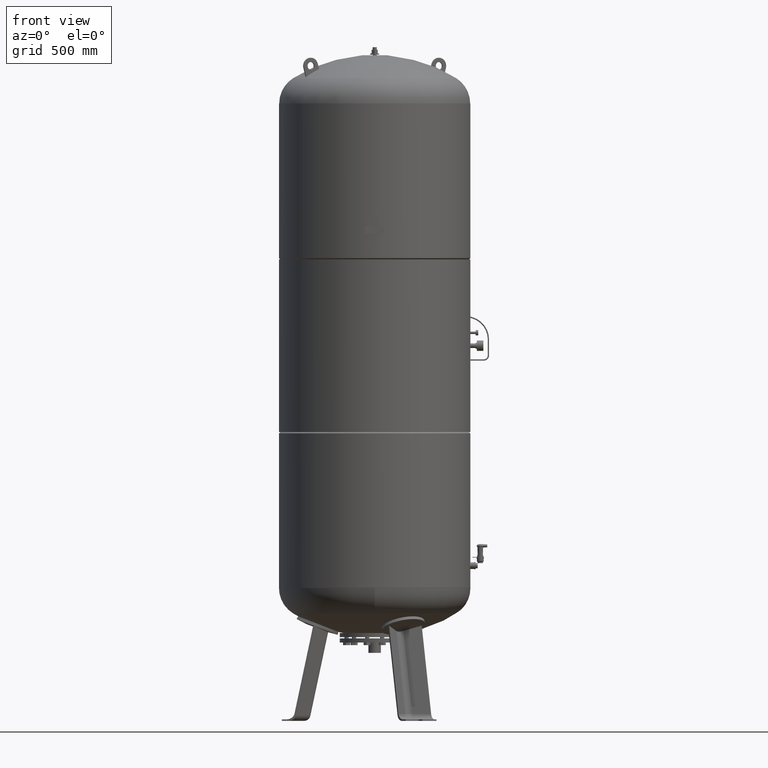
[diagram: clean part render]
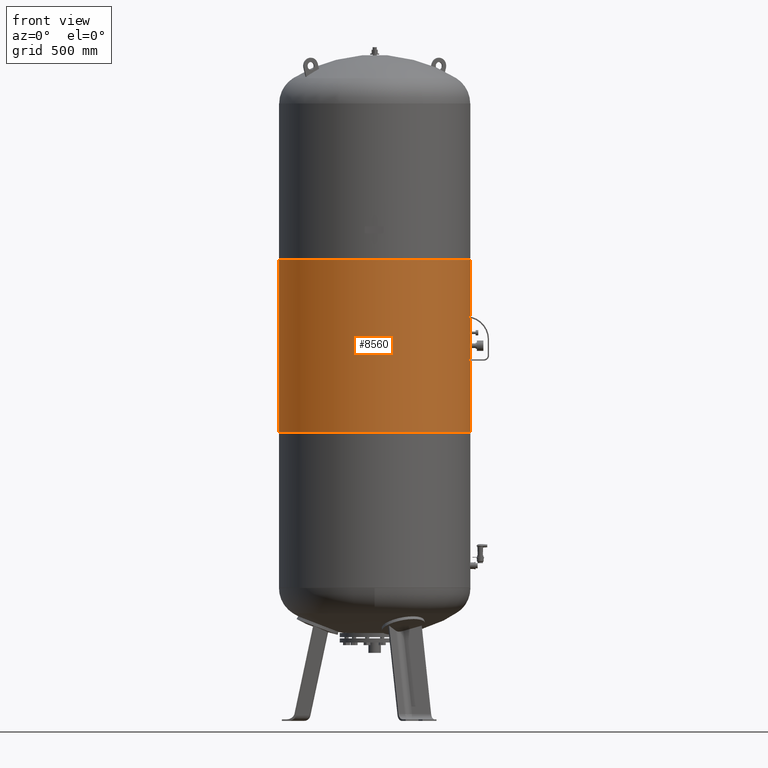
[diagram: same view with one face highlighted and labeled with its STEP entity id]
A machine part, front view. The second image highlights one B-rep face of the part: STEP entity #8560.
In plain terms, the highlighted cylindrical surface (partial cylindrical patch) has radius 370 mm, axis along (0, 0, 1).
Its self-contained STEP definition (entity closure, byte-faithful):
#8519=CARTESIAN_POINT('',(0.0,0.0,1450.0));
#8520=DIRECTION('',(1.667129E-017,0.0,1.0));
#8521=DIRECTION('',(1.0,0.0,0.0));
#8522=AXIS2_PLACEMENT_3D('',#8519,#8520,#8521);
#8523=CYLINDRICAL_SURFACE('',#8522,369.999999999999430);
#8524=CARTESIAN_POINT('',(369.999999999999490,0.0,1783.666666666666700));
#8525=VERTEX_POINT('',#8524);
#8526=CARTESIAN_POINT('',(369.999999999999370,0.0,1116.333333333333000));
#8527=VERTEX_POINT('',#8526);
#8528=CARTESIAN_POINT('',(369.999999999999490,0.0,1783.666666666666700));
#8529=DIRECTION('',(0.0,0.0,-1.0));
#8530=VECTOR('',#8529,667.333333333333710);
#8531=LINE('',#8528,#8530);
#8532=EDGE_CURVE('',#8525,#8527,#8531,.T.);
#8533=ORIENTED_EDGE('',*,*,#8532,.F.);
#8534=CARTESIAN_POINT('',(-369.999999999999430,-4.531044E-014,1783.666666666666700));
#8535=VERTEX_POINT('',#8534);
#8536=CARTESIAN_POINT('',(5.562655E-015,0.0,1783.666666666666700));
#8537=DIRECTION('',(0.0,0.0,1.0));
#8538=DIRECTION('',(1.0,0.0,0.0));
#8539=AXIS2_PLACEMENT_3D('',#8536,#8537,#8538);
#8540=CIRCLE('',#8539,369.999999999999490);
#8541=EDGE_CURVE('',#8535,#8525,#8540,.T.);
#8542=ORIENTED_EDGE('',*,*,#8541,.F.);
#8543=CARTESIAN_POINT('',(-369.999999999999430,-4.531044E-014,1116.333333333333000));
#8544=VERTEX_POINT('',#8543);
#8545=CARTESIAN_POINT('',(-369.999999999999430,-4.531044E-014,1783.666666666666700));
#8546=DIRECTION('',(0.0,0.0,-1.0));
#8547=VECTOR('',#8546,667.333333333333710);
#8548=LINE('',#8545,#8547);
#8549=EDGE_CURVE('',#8535,#8544,#8548,.T.);
#8550=ORIENTED_EDGE('',*,*,#8549,.T.);
#8551=CARTESIAN_POINT('',(-5.562655E-015,0.0,1116.333333333333000));
#8552=DIRECTION('',(0.0,0.0,1.0));
#8553=DIRECTION('',(1.0,0.0,0.0));
#8554=AXIS2_PLACEMENT_3D('',#8551,#8552,#8553);
#8555=CIRCLE('',#8554,369.999999999999370);
#8556=EDGE_CURVE('',#8544,#8527,#8555,.T.);
#8557=ORIENTED_EDGE('',*,*,#8556,.T.);
#8558=EDGE_LOOP('',(#8533,#8542,#8550,#8557));
#8559=FACE_OUTER_BOUND('',#8558,.T.);
#8560=ADVANCED_FACE('',(#8559),#8523,.T.);